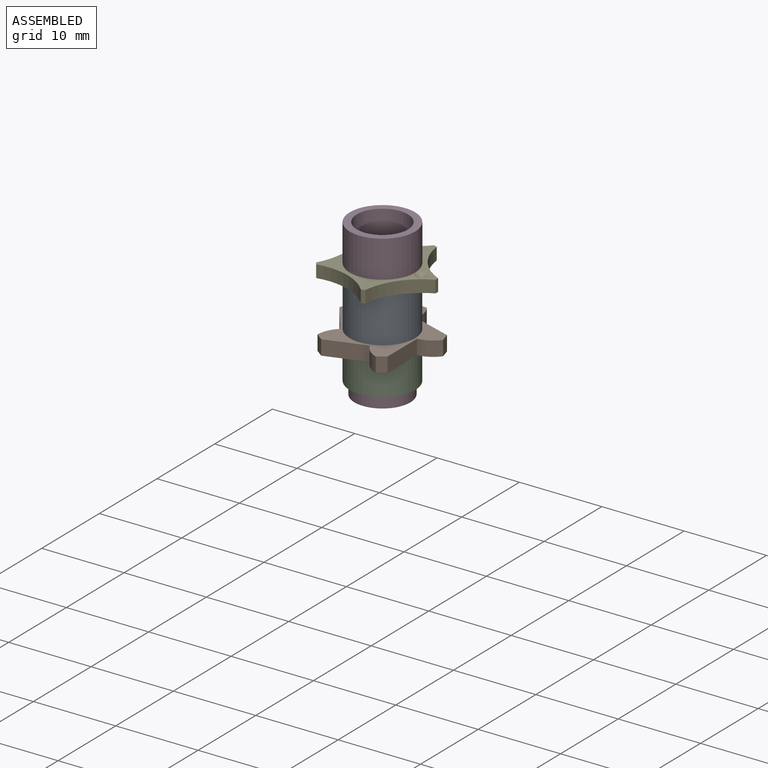
[diagram: assembled view]
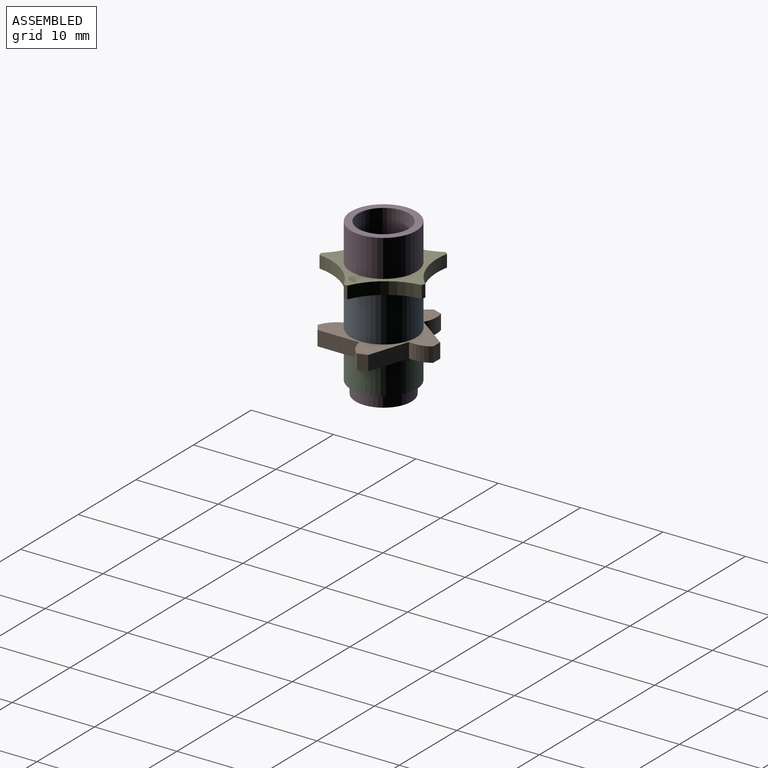
[diagram: assembled view, second angle]
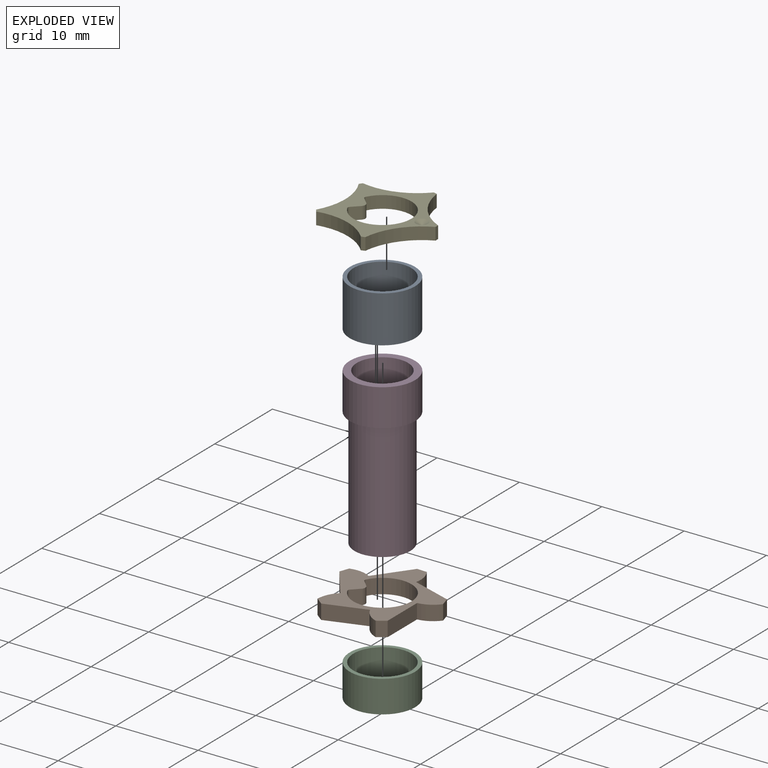
[diagram: exploded view]
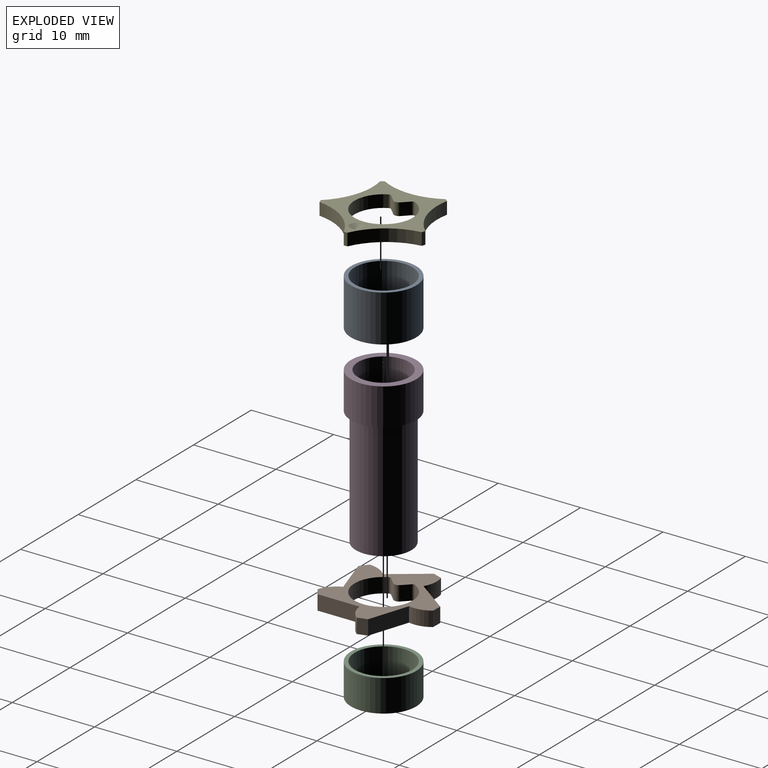
[diagram: exploded view, second angle]
ASSEMBLY  parts=5 mates=4
PART A: 4 faces, bbox 7.9x7.9x5.7 mm
  f0: cylinder r=3.51mm len=7.02mm, axis (0,0,-1), area 125.7mm2, adj f2,f3
  f1: cylinder r=3.97mm len=7.94mm, axis (0,0,-1), area 142.2mm2, adj f2,f3
  f2: plane 7.94x7.94mm, normal (0,0,1), area 10.8mm2, adj f0,f1
  f3: plane 7.94x7.94mm, normal (0,0,-1), area 10.8mm2, adj f0,f1
PART B: 23 faces, bbox 12.9x12.4x1.8 mm
  f0: plane 5.09x1.8mm, normal (1,0,0), area 9.2mm2, adj f1,f20,f21,f22
  f1: cylinder r=3.29mm len=2.28mm, axis (0,0,-1), area 4.8mm2, adj f0,f2,f21,f22
  f2: plane 1.8x1.15mm, normal (0.96,0.28,0), area 2.2mm2, adj f1,f3,f21,f22
  f3: plane 4.84x1.8mm, normal (0.31,0.95,0), area 9.2mm2, adj f2,f4,f21,f22
  f4: cylinder r=3.29mm len=2.56mm, axis (0,0,-1), area 4.8mm2, adj f3,f5,f21,f22
  f5: plane 1.8x1.2mm, normal (0.03,1,0), area 2.2mm2, adj f4,f6,f21,f22
  f6: plane 4.12x2.99mm, normal (-0.81,0.59,0), area 9.2mm2, adj f5,f7,f21,f22
  f7: cylinder r=3.29mm len=2.59mm, axis (0,0,-1), area 4.8mm2, adj f6,f8,f21,f22
  f8: plane 1.8x1.13mm, normal (-0.94,0.34,0), area 2.2mm2, adj f7,f9,f21,f22
  f9: plane 4.12x2.99mm, normal (-0.81,-0.59,0), area 9.2mm2, adj f8,f10,f21,f22
  f10: cylinder r=3.29mm len=2.37mm, axis (0,0,-1), area 4.8mm2, adj f9,f11,f21,f22
  f11: plane 1.8x0.95mm, normal (-0.61,-0.79,0), area 2.2mm2, adj f10,f12,f21,f22
  f12: plane 4.84x1.8mm, normal (0.31,-0.95,0), area 9.2mm2, adj f11,f13,f21,f22
  f13: cylinder r=3.29mm len=1.91mm, axis (0,0,-1), area 4.8mm2, adj f12,f20,f21,f22
  f14: cylinder r=3.53mm len=7.06mm, axis (0,0,-1), area 33.9mm2, adj f15,f19,f21,f22
  f15: cylinder r=0.3mm len=1.8mm, axis (0,0,-1), area 0.7mm2, adj f14,f16,f21,f22
  f16: plane 1.8x0.83mm, normal (0.71,-0.71,0), area 2.1mm2, adj f15,f17,f21,f22
  f17: cylinder r=0.6mm len=1.8mm, axis (0,0,-1), area 1.7mm2, adj f16,f18,f21,f22
  f18: plane 1.8x0.83mm, normal (0.71,0.71,0), area 2.1mm2, adj f17,f19,f21,f22
  f19: cylinder r=0.3mm len=1.8mm, axis (0,0,-1), area 0.7mm2, adj f14,f18,f21,f22
  f20: plane 1.8x0.99mm, normal (0.56,-0.83,0), area 2.2mm2, adj f0,f13,f21,f22
  f21: plane 12.87x12.36mm, normal (0,0,1), area 52.2mm2, adj f0,f1,f2,f3,f4,f5,f6,f7
  f22: plane 12.87x12.36mm, normal (0,0,-1), area 52.2mm2, adj f0,f1,f2,f3,f4,f5,f6,f7
PART C: 4 faces, bbox 7.9x7.9x3.9 mm
  f0: cylinder r=3.51mm len=7.02mm, axis (0,0,-1), area 86mm2, adj f2,f3
  f1: cylinder r=3.97mm len=7.94mm, axis (0,0,-1), area 97.3mm2, adj f2,f3
  f2: plane 7.94x7.94mm, normal (0,0,1), area 10.8mm2, adj f0,f1
  f3: plane 7.94x7.94mm, normal (0,0,-1), area 10.8mm2, adj f0,f1
PART D: 17 faces, bbox 7.9x7.9x18.9 mm
  f0: cylinder r=3.11mm len=18.9mm, axis (0,0,-1), area 321.8mm2, adj f2,f3,f4,f14,f15,f16
  f1: cylinder r=3.97mm len=7.94mm, axis (0,0,-1), area 112.2mm2, adj f2,f3
  f2: plane 7.94x7.94mm, normal (0,0,1), area 19.2mm2, adj f0,f1
  f3: plane 7.94x7.94mm, normal (0,0,-1), area 14mm2, adj f0,f1,f9,f10,f11
  f4: cylinder r=0.15mm len=14.4mm, axis (0,0,1), area 2.8mm2, adj f0,f5,f15,f16
  f5: plane 14.4x0.75mm, normal (0.71,0.71,0), area 15.2mm2, adj f4,f6,f15,f16
  f6: cylinder r=0.9mm len=14.4mm, axis (0,0,1), area 20.4mm2, adj f5,f7,f15,f16
  f7: plane 14.4x0.75mm, normal (0.71,-0.71,0), area 15.2mm2, adj f6,f14,f15,f16
  f8: plane 14.4x0.76mm, normal (-0.71,-0.71,0), area 15.6mm2, adj f9,f13,f15,f16
  f9: cylinder r=0.45mm len=14.4mm, axis (0,0,1), area 8.2mm2, adj f3,f8,f10,f15,f16
  f10: cylinder r=3.4mm len=14.4mm, axis (0,0,1), area 258.9mm2, adj f3,f9,f11,f15
  f11: cylinder r=0.45mm len=14.4mm, axis (0,0,1), area 8.2mm2, adj f3,f10,f12,f15,f16
  f12: plane 14.4x0.76mm, normal (-0.71,0.71,0), area 15.6mm2, adj f11,f13,f15,f16
  f13: cylinder r=0.45mm len=14.4mm, axis (0,0,1), area 10.2mm2, adj f8,f12,f15,f16
  f14: cylinder r=0.15mm len=14.4mm, axis (0,0,1), area 2.8mm2, adj f0,f7,f15,f16
  f15: plane 6.79x6.44mm, normal (0,0,-1), area 6.4mm2, adj f0,f4,f5,f6,f7,f8,f9,f10
  f16: plane 3.13x1.26mm, normal (0,0,1), area 1.3mm2, adj f0,f4,f5,f6,f7,f8,f9,f11
PART E: 19 faces, bbox 12.1x12.7x1.5 mm
  f0: cylinder r=7.5mm len=7.03mm, axis (0,0,-1), area 11.6mm2, adj f1,f15,f16,f17
  f1: cylinder r=6.6mm len=1.5mm, axis (0,0,-1), area 0.7mm2, adj f0,f2,f16,f17
  f2: cylinder r=7.5mm len=7.39mm, axis (0,0,-1), area 11.6mm2, adj f1,f3,f16,f17
  f3: cylinder r=6.6mm len=1.5mm, axis (0,0,-1), area 0.7mm2, adj f2,f4,f16,f17
  f4: cylinder r=7.5mm len=7.02mm, axis (0,0,-1), area 11.6mm2, adj f3,f5,f16,f17
  f5: cylinder r=6.6mm len=1.5mm, axis (0,0,-1), area 0.7mm2, adj f4,f6,f16,f17
  f6: cylinder r=7.5mm len=5.97mm, axis (0,0,-1), area 11.6mm2, adj f5,f7,f16,f17
  f7: cylinder r=6.6mm len=1.5mm, axis (0,0,-1), area 0.7mm2, adj f6,f8,f16,f17
  f8: cylinder r=7.5mm len=5.98mm, axis (0,0,-1), area 11.6mm2, adj f7,f15,f16,f17
  f9: cylinder r=3.53mm len=7.06mm, axis (0,0,-1), area 28.3mm2, adj f10,f14,f16,f17
  f10: cylinder r=0.3mm len=1.5mm, axis (0,0,-1), area 0.6mm2, adj f9,f11,f16,f17
  f11: plane 1.5x0.83mm, normal (0.71,-0.71,0), area 1.8mm2, adj f10,f12,f16,f17
  f12: cylinder r=0.6mm len=1.5mm, axis (0,0,-1), area 1.4mm2, adj f11,f13,f16,f17
  f13: plane 1.5x0.83mm, normal (0.71,0.71,0), area 1.8mm2, adj f12,f14,f16,f17
  f14: cylinder r=0.3mm len=1.5mm, axis (0,0,-1), area 0.6mm2, adj f9,f13,f16,f17
  f15: cylinder r=6.6mm len=1.5mm, axis (0,0,-1), area 0.7mm2, adj f0,f8,f16,f17
  f16: plane 12.69x12.07mm, normal (0,0,1), area 45.8mm2, adj f0,f1,f2,f3,f4,f5,f6,f7
  f17: plane 12.69x12.07mm, normal (0,0,-1), area 47.6mm2, adj f0,f1,f2,f3,f4,f5,f6,f7
  f18: cone r=0.75mm half-angle=60deg, axis (0,0,1), area 2mm2, adj f16
PLACE A t=(-1.6,-0.03,1)mm
PLACE B t=(-1.6,-0.03,-0.8)mm
PLACE C t=(-1.6,-0.03,-4.7)mm
PLACE D t=(-1.6,-0.03,8.2)mm
PLACE E t=(-1.6,-0.03,6.7)mm
MATE fastened B.f14 <-> C.f0  axis (0,0,-1) through (-1.6,-0.03,-0.8)mm
MATE fastened E.f1 <-> D.f0  axis (0,0,-1) through (-1.6,-0.03,8.2)mm
MATE fastened A.f0 <-> E.f1  axis (0,0,-1) through (-1.6,-0.03,6.7)mm
MATE fastened A.f0 <-> B.f14  axis (0,0,-1) through (-1.6,-0.03,1)mm
